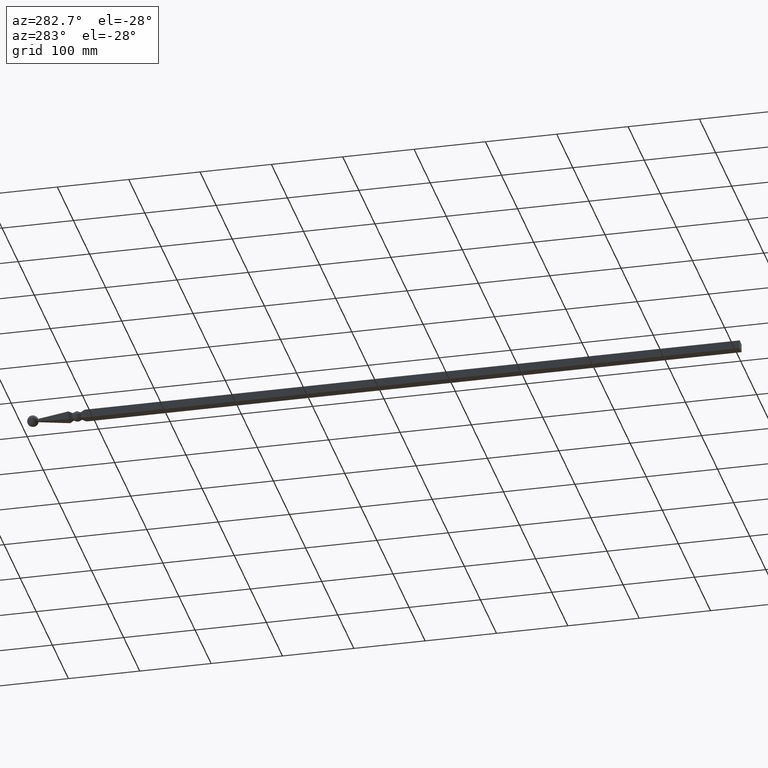
[diagram: clean part render]
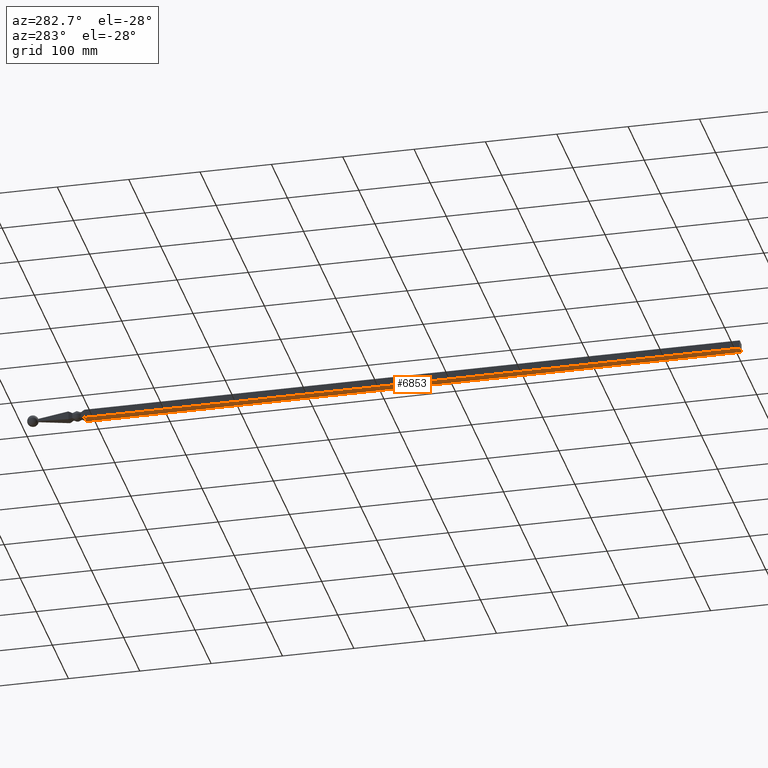
[diagram: same view with one face highlighted and labeled with its STEP entity id]
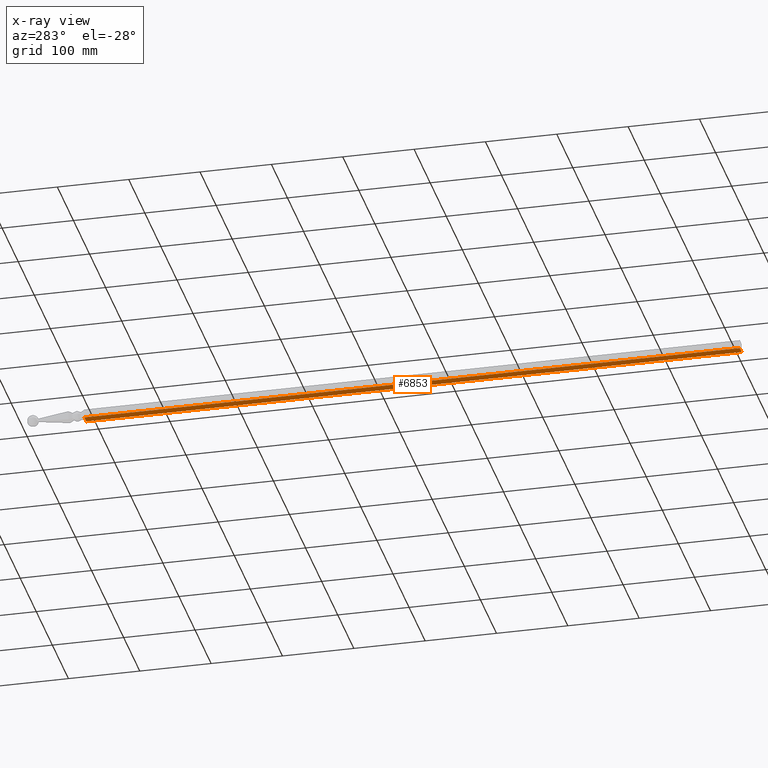
[diagram: x-ray of the same camera — body ghosted, the highlighted face saturated]
A machine part, auxiliary view. The second image highlights one B-rep face of the part: STEP entity #6853.
The next image is the same camera in x-ray: the body ghosted, the highlighted face saturated — about 0% of this face is hidden behind the body in this view.
In plain terms, the highlighted planar face has unit normal (-0, 0, 1).
Its self-contained STEP definition (entity closure, byte-faithful):
#404 = VECTOR ( 'NONE', #5127, 1000.000000000000000 ) ;
#754 = CARTESIAN_POINT ( 'NONE',  ( -5.999999999997208455, 918.5000000000000000, -6.000000000000001776 ) ) ;
#924 = VERTEX_POINT ( 'NONE', #6599 ) ;
#982 = CARTESIAN_POINT ( 'NONE',  ( -5.999999999997208455, 0.000000000000000000, -6.000000000000001776 ) ) ;
#1041 = ORIENTED_EDGE ( 'NONE', *, *, #12143, .T. ) ;
#1340 = EDGE_CURVE ( 'NONE', #6417, #12141, #3260, .T. ) ;
#1474 = DIRECTION ( 'NONE',  ( 1.000000000000000000, 0.000000000000000000, 2.168404344971008621E-16 ) ) ;
#1843 = DIRECTION ( 'NONE',  ( -0.000000000000000000, 1.000000000000000000, -0.000000000000000000 ) ) ;
#1897 = FACE_OUTER_BOUND ( 'NONE', #2535, .T. ) ;
#2308 = AXIS2_PLACEMENT_3D ( 'NONE', #9793, #10907, #1474 ) ;
#2535 = EDGE_LOOP ( 'NONE', ( #5102, #1041, #5202, #11297 ) ) ;
#2671 = CARTESIAN_POINT ( 'NONE',  ( 6.000000000002792433, 0.000000000000000000, -5.999999999999999112 ) ) ;
#3172 = CARTESIAN_POINT ( 'NONE',  ( 6.000000000002792433, 918.5000000000000000, -5.999999999999999112 ) ) ;
#3260 = LINE ( 'NONE', #982, #4239 ) ;
#4239 = VECTOR ( 'NONE', #12490, 1000.000000000000000 ) ;
#4996 = LINE ( 'NONE', #8836, #10272 ) ;
#5102 = ORIENTED_EDGE ( 'NONE', *, *, #1340, .F. ) ;
#5127 = DIRECTION ( 'NONE',  ( 1.000000000000000000, 0.000000000000000000, 2.168404344971008868E-16 ) ) ;
#5202 = ORIENTED_EDGE ( 'NONE', *, *, #10146, .T. ) ;
#6417 = VERTEX_POINT ( 'NONE', #10704 ) ;
#6599 = CARTESIAN_POINT ( 'NONE',  ( -5.999999999997208455, 918.5000000000000000, -6.000000000000001776 ) ) ;
#6770 = DIRECTION ( 'NONE',  ( -0.000000000000000000, 1.000000000000000000, -0.000000000000000000 ) ) ;
#6853 = ADVANCED_FACE ( 'NONE', ( #1897 ), #7835, .F. ) ;
#6877 = EDGE_CURVE ( 'NONE', #12141, #11241, #4996, .T. ) ;
#7351 = LINE ( 'NONE', #754, #404 ) ;
#7835 = PLANE ( 'NONE',  #2308 ) ;
#8789 = LINE ( 'NONE', #9074, #10104 ) ;
#8836 = CARTESIAN_POINT ( 'NONE',  ( 6.000000000002792433, -16.97056274847707869, -5.999999999999999112 ) ) ;
#9074 = CARTESIAN_POINT ( 'NONE',  ( -5.999999999997208455, -16.97056274847707869, -6.000000000000001776 ) ) ;
#9793 = CARTESIAN_POINT ( 'NONE',  ( -5.999999999997208455, -16.97056274847707869, -6.000000000000001776 ) ) ;
#10104 = VECTOR ( 'NONE', #1843, 1000.000000000000000 ) ;
#10146 = EDGE_CURVE ( 'NONE', #924, #11241, #7351, .T. ) ;
#10272 = VECTOR ( 'NONE', #6770, 1000.000000000000000 ) ;
#10704 = CARTESIAN_POINT ( 'NONE',  ( -5.999999999997208455, 8.483565974923389882E-33, -6.000000000000002665 ) ) ;
#10907 = DIRECTION ( 'NONE',  ( -2.168404344971008621E-16, 0.000000000000000000, 1.000000000000000000 ) ) ;
#11241 = VERTEX_POINT ( 'NONE', #3172 ) ;
#11297 = ORIENTED_EDGE ( 'NONE', *, *, #6877, .F. ) ;
#12141 = VERTEX_POINT ( 'NONE', #2671 ) ;
#12143 = EDGE_CURVE ( 'NONE', #6417, #924, #8789, .T. ) ;
#12490 = DIRECTION ( 'NONE',  ( 1.000000000000000000, 9.780885648240125358E-18, 2.168404344971008621E-16 ) ) ;